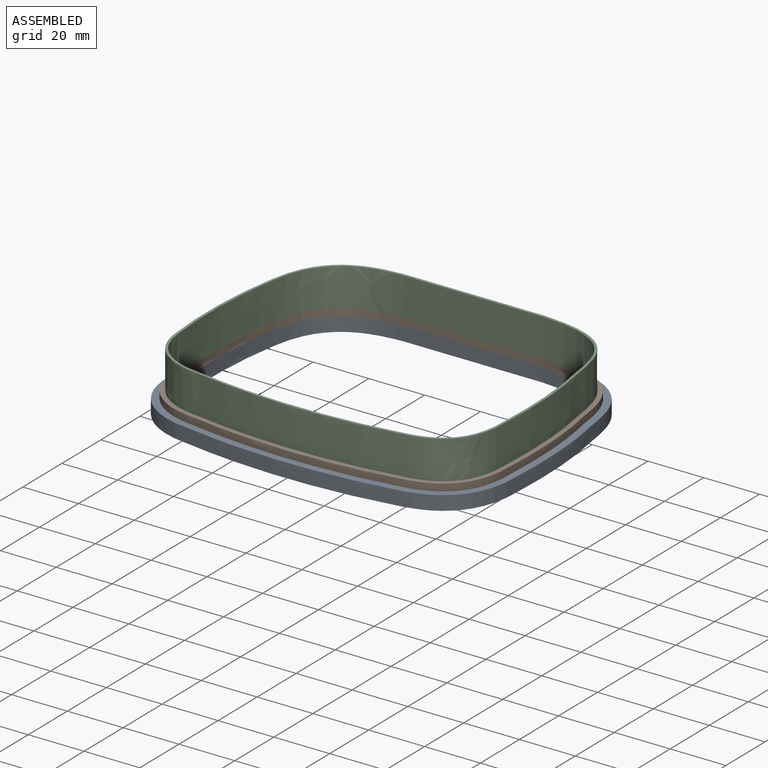
[diagram: assembled view]
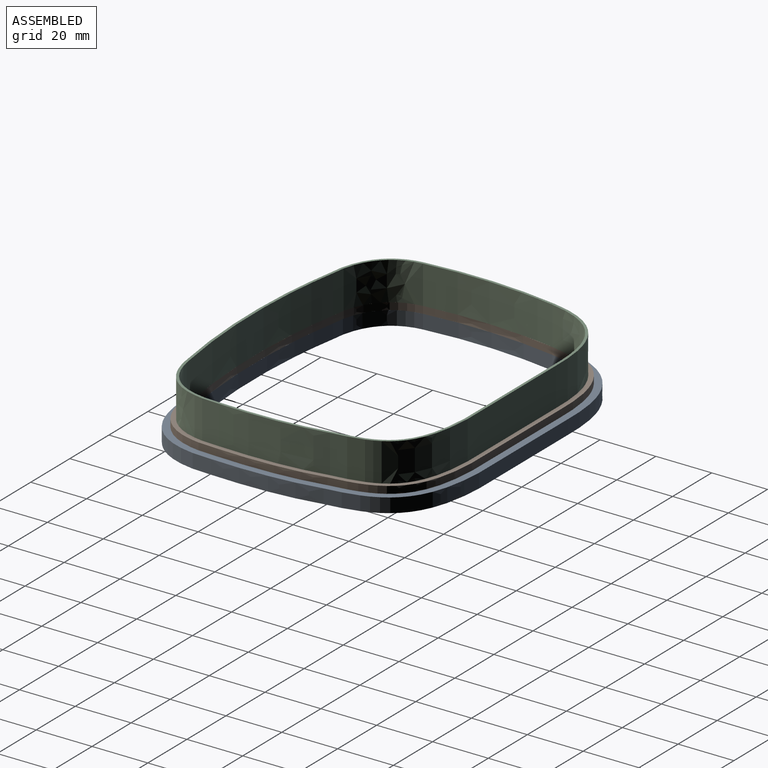
[diagram: assembled view, second angle]
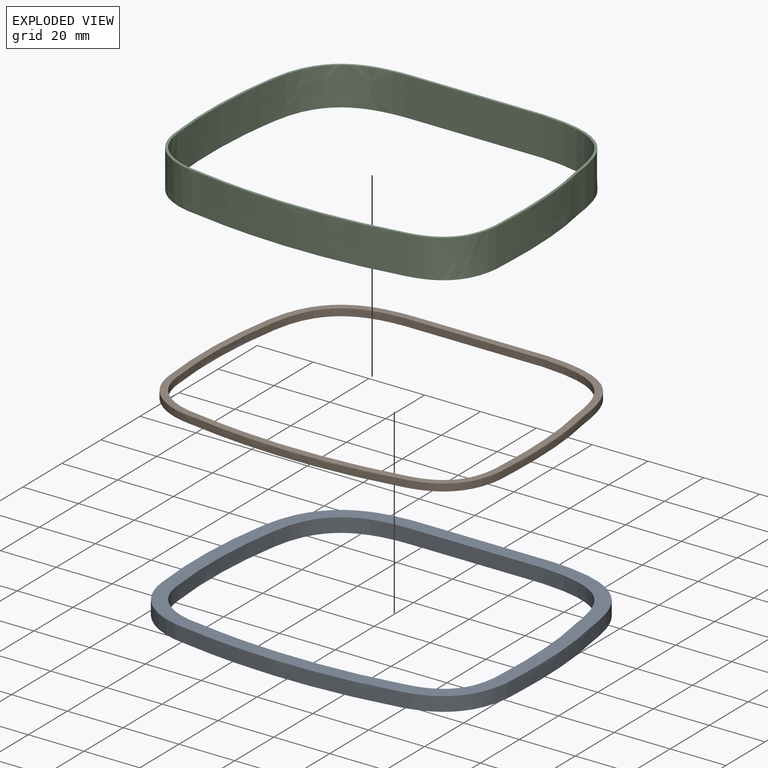
[diagram: exploded view]
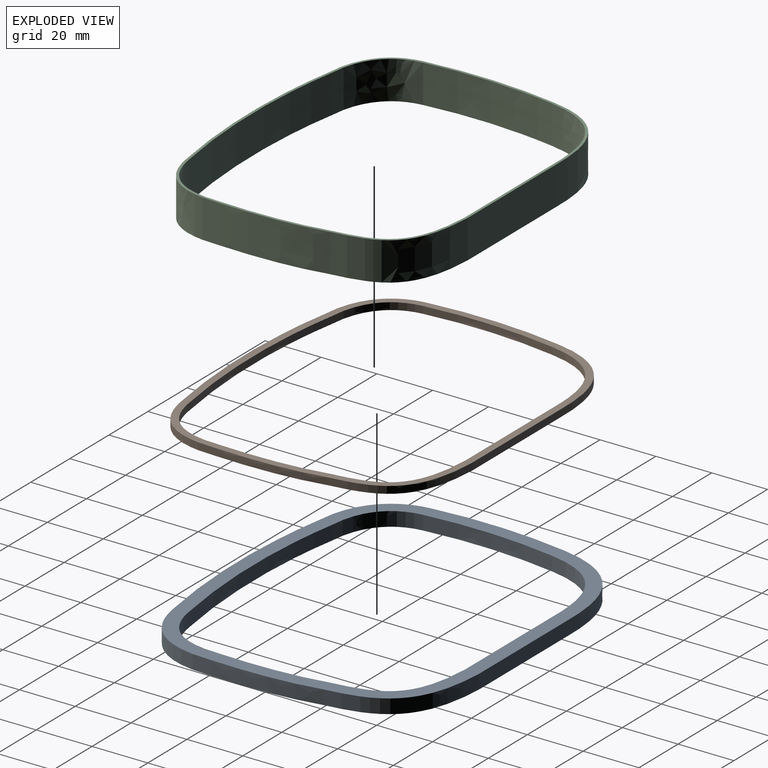
[diagram: exploded view, second angle]
ASSEMBLY  parts=3 mates=2
PART A: 18 faces, bbox 125.2x103.3x5.6 mm
  f0: plane 125.17x103.26mm, normal (0,0,1), area 1924mm2, adj f2,f3,f4,f5,f6,f7,f8,f9
  f1: plane 125.17x103.26mm, normal (0,0,-1), area 1924mm2, adj f2,f3,f4,f5,f6,f7,f8,f9
  f2: extruded ~39.06x28.58mm, area 274.9mm2, adj f0,f1,f3,f9
  f3: extruded ~48.79x5.08mm, area 248.8mm2, adj f0,f1,f2,f4
  f4: extruded ~25.02x22.3mm, area 186.4mm2, adj f0,f1,f3,f5
  f5: extruded ~74.36x5.08mm, area 379.5mm2, adj f0,f1,f4,f6
  f6: extruded ~29.58x23.99mm, area 216.6mm2, adj f0,f1,f5,f7
  f7: extruded ~38.96x5.08mm, area 198.7mm2, adj f0,f1,f6,f8
  f8: extruded ~35.15x31.09mm, area 269.9mm2, adj f0,f1,f7,f9
  f9: plane 45.31x5.08mm, normal (0,1,0), area 230.2mm2, adj f0,f1,f2,f8
  f10: extruded ~34x24.35mm, area 238.5mm2, adj f0,f1,f11,f17
  f11: extruded ~47.41x5.08mm, area 241.8mm2, adj f0,f1,f10,f12
  f12: extruded ~20.59x17.78mm, area 151.8mm2, adj f0,f1,f11,f13
  f13: extruded ~72.99x5.08mm, area 372.5mm2, adj f0,f1,f12,f14
  f14: extruded ~24.64x19.66mm, area 180.4mm2, adj f0,f1,f13,f15
  f15: extruded ~38.06x5.08mm, area 194.1mm2, adj f0,f1,f14,f16
  f16: extruded ~30.26x26.83mm, area 234.1mm2, adj f0,f1,f15,f17
  f17: plane 45.23x5.08mm, normal (0,-1,0), area 229.8mm2, adj f0,f1,f10,f16
PART B: 18 faces, bbox 119.6x97.7x2.5 mm
  f0: plane 119.58x97.68mm, normal (0,0,1), area 941.7mm2, adj f2,f3,f4,f5,f6,f7,f8,f9
  f1: plane 119.58x97.68mm, normal (0,0,-1), area 941.7mm2, adj f2,f3,f4,f5,f6,f7,f8,f9
  f2: extruded ~36.53x26.46mm, area 128.3mm2, adj f0,f1,f3,f9
  f3: extruded ~48.1x2.58mm, area 122.6mm2, adj f0,f1,f2,f4
  f4: extruded ~22.8x20.04mm, area 84.6mm2, adj f0,f1,f3,f5
  f5: extruded ~73.68x3.07mm, area 188mm2, adj f0,f1,f4,f6
  f6: extruded ~27.11x21.82mm, area 99.3mm2, adj f0,f1,f5,f7
  f7: extruded ~38.51x2.54mm, area 98.2mm2, adj f0,f1,f6,f8
  f8: extruded ~32.7x28.96mm, area 126mm2, adj f0,f1,f7,f9
  f9: plane 45.27x2.54mm, normal (0,1,0), area 115mm2, adj f0,f1,f2,f8
  f10: extruded ~34x24.35mm, area 119.2mm2, adj f0,f1,f11,f17
  f11: extruded ~47.41x2.55mm, area 120.9mm2, adj f0,f1,f10,f12
  f12: extruded ~20.59x17.78mm, area 75.9mm2, adj f0,f1,f11,f13
  f13: extruded ~72.99x3.04mm, area 186.3mm2, adj f0,f1,f12,f14
  f14: extruded ~24.64x19.66mm, area 90.2mm2, adj f0,f1,f13,f15
  f15: extruded ~38.06x2.54mm, area 97.1mm2, adj f0,f1,f14,f16
  f16: extruded ~30.26x26.83mm, area 117.1mm2, adj f0,f1,f15,f17
  f17: plane 45.23x2.54mm, normal (0,-1,0), area 114.9mm2, adj f0,f1,f10,f16
PART C: 18 faces, bbox 123.7x101.8x21.2 mm
  f0: plane 123.73x101.82mm, normal (0,0,1), area 324.9mm2, adj f2,f3,f4,f5,f6,f7,f8,f9
  f1: plane 123.73x101.82mm, normal (0,0,-1), area 324.9mm2, adj f2,f3,f4,f5,f6,f7,f8,f9
  f2: extruded ~34.88x25.08mm, area 661mm2, adj f0,f1,f3,f9
  f3: extruded ~47.66x13.72mm, area 656.2mm2, adj f0,f1,f2,f4
  f4: extruded ~21.36x18.57mm, area 426.1mm2, adj f0,f1,f3,f5
  f5: extruded ~73.23x13.72mm, area 1009.1mm2, adj f0,f1,f4,f6
  f6: extruded ~25.51x20.42mm, area 504.1mm2, adj f0,f1,f5,f7
  f7: extruded ~38.21x13.72mm, area 526.4mm2, adj f0,f1,f6,f8
  f8: extruded ~31.11x27.57mm, area 649.1mm2, adj f0,f1,f7,f9
  f9: plane 45.24x13.72mm, normal (0,1,0), area 620.6mm2, adj f0,f1,f2,f8
  f10: extruded ~34x24.35mm, area 643.8mm2, adj f0,f1,f11,f17
  f11: extruded ~47.41x13.72mm, area 652.8mm2, adj f0,f1,f10,f12
  f12: extruded ~20.59x17.78mm, area 409.7mm2, adj f0,f1,f11,f13
  f13: extruded ~72.99x13.72mm, area 1005.8mm2, adj f0,f1,f12,f14
  f14: extruded ~24.64x19.66mm, area 487mm2, adj f0,f1,f13,f15
  f15: extruded ~38.06x13.72mm, area 524.2mm2, adj f0,f1,f14,f16
  f16: extruded ~30.26x26.83mm, area 632.2mm2, adj f0,f1,f15,f17
  f17: plane 45.23x13.72mm, normal (0,-1,0), area 620.4mm2, adj f0,f1,f10,f16
PLACE A t=(226.51,7.59,25.1)mm
PLACE B t=(499.39,-12.38,30.18)mm
PLACE C t=(345.77,5.91,32.72)mm
MATE fastened C.f1 <-> B.f0  axis (0,0,1) through (287.28,24,32.72)mm
MATE fastened B.f1 <-> A.f0  axis (0,0,1) through (287.28,24,30.18)mm
